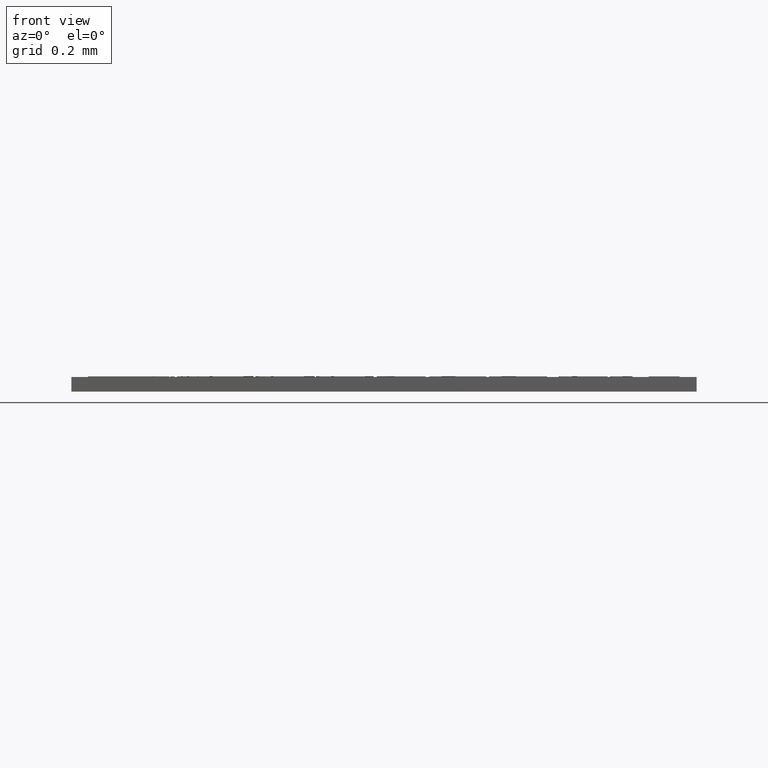
[diagram: clean part render]
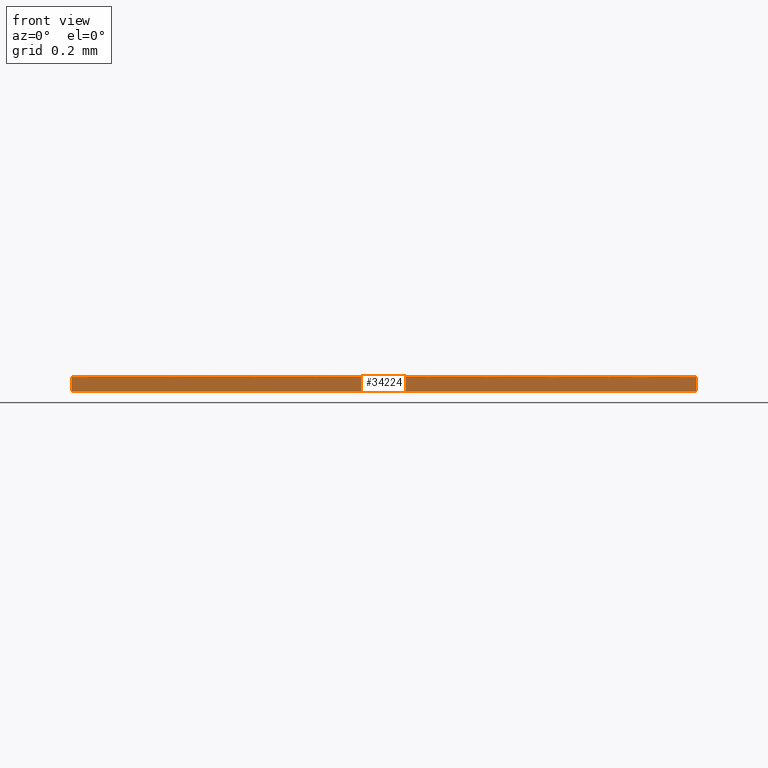
[diagram: same view with one face highlighted and labeled with its STEP entity id]
A machine part, front view. The second image highlights one B-rep face of the part: STEP entity #34224.
In plain terms, the highlighted planar face has unit normal (0, -1, 0).
Its self-contained STEP definition (entity closure, byte-faithful):
#32915=CARTESIAN_POINT('',(0.081102362204724,0.0,0.001889763779528));
#32916=VERTEX_POINT('',#32915);
#32917=CARTESIAN_POINT('',(0.0,0.0,0.001889763779528));
#32918=VERTEX_POINT('',#32917);
#32919=CARTESIAN_POINT('',(0.081102362204724,0.0,0.001889763779528));
#32920=DIRECTION('',(-1.0,0.0,0.0));
#32921=VECTOR('',#32920,0.081102362204724);
#32922=LINE('',#32919,#32921);
#32923=EDGE_CURVE('',#32916,#32918,#32922,.T.);
#34194=CARTESIAN_POINT('',(0.081102362204724,0.0,0.0));
#34195=DIRECTION('',(0.0,-1.0,0.0));
#34196=DIRECTION('',(0.0,0.0,-1.0));
#34197=AXIS2_PLACEMENT_3D('',#34194,#34195,#34196);
#34198=PLANE('',#34197);
#34199=ORIENTED_EDGE('',*,*,#32923,.T.);
#34200=CARTESIAN_POINT('',(0.0,0.0,0.0));
#34201=VERTEX_POINT('',#34200);
#34202=CARTESIAN_POINT('',(0.0,0.0,0.0));
#34203=DIRECTION('',(0.0,0.0,1.0));
#34204=VECTOR('',#34203,0.001889763779528);
#34205=LINE('',#34202,#34204);
#34206=EDGE_CURVE('',#34201,#32918,#34205,.T.);
#34207=ORIENTED_EDGE('',*,*,#34206,.F.);
#34208=CARTESIAN_POINT('',(0.081102362204724,0.0,0.0));
#34209=VERTEX_POINT('',#34208);
#34210=CARTESIAN_POINT('',(0.0,0.0,0.0));
#34211=DIRECTION('',(1.0,0.0,0.0));
#34212=VECTOR('',#34211,0.081102362204724);
#34213=LINE('',#34210,#34212);
#34214=EDGE_CURVE('',#34201,#34209,#34213,.T.);
#34215=ORIENTED_EDGE('',*,*,#34214,.T.);
#34216=CARTESIAN_POINT('',(0.081102362204724,0.0,0.0));
#34217=DIRECTION('',(0.0,0.0,1.0));
#34218=VECTOR('',#34217,0.001889763779528);
#34219=LINE('',#34216,#34218);
#34220=EDGE_CURVE('',#34209,#32916,#34219,.T.);
#34221=ORIENTED_EDGE('',*,*,#34220,.T.);
#34222=EDGE_LOOP('',(#34199,#34207,#34215,#34221));
#34223=FACE_OUTER_BOUND('',#34222,.T.);
#34224=ADVANCED_FACE('',(#34223),#34198,.T.);